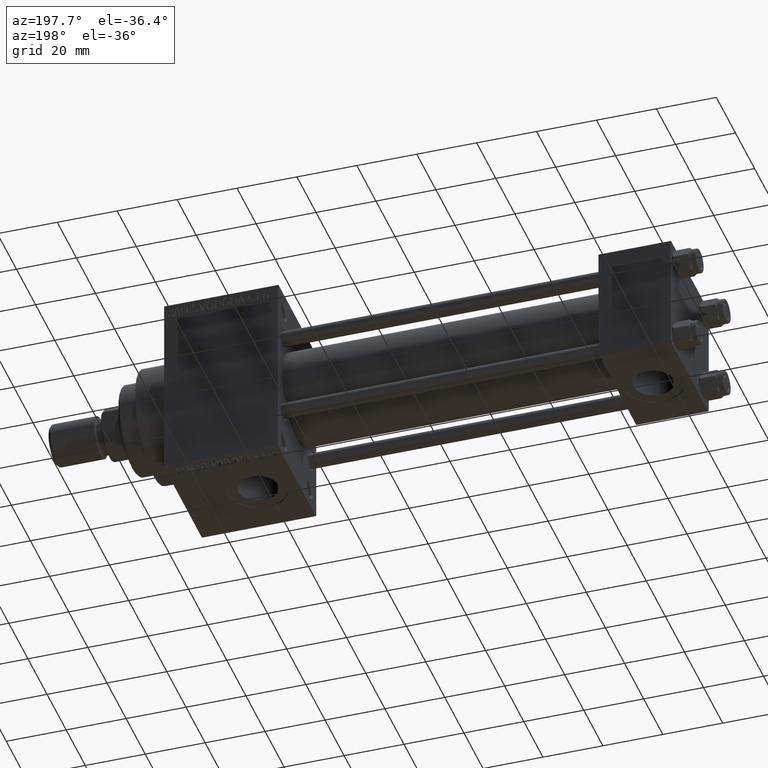
[diagram: clean part render]
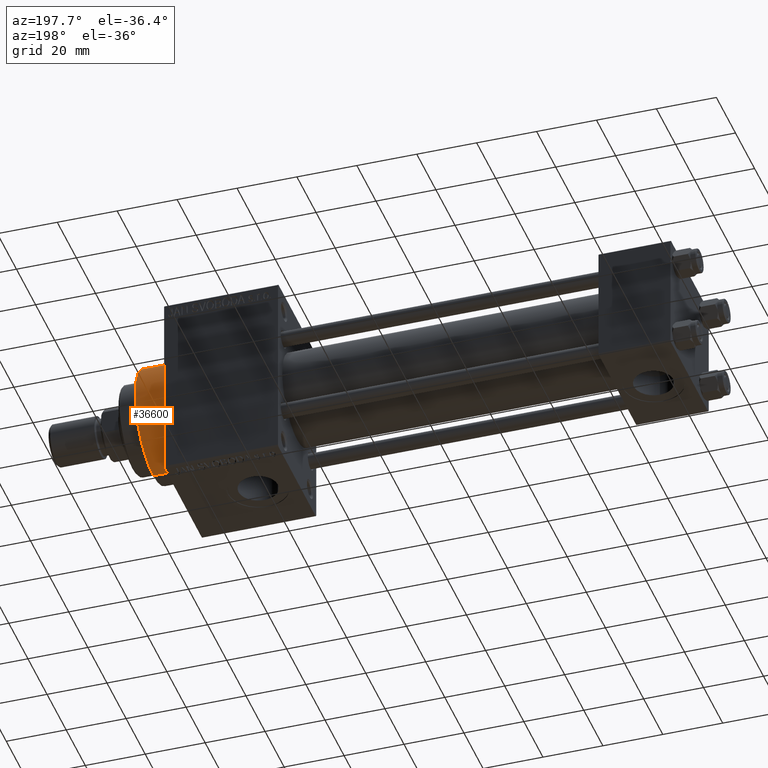
[diagram: same view with one face highlighted and labeled with its STEP entity id]
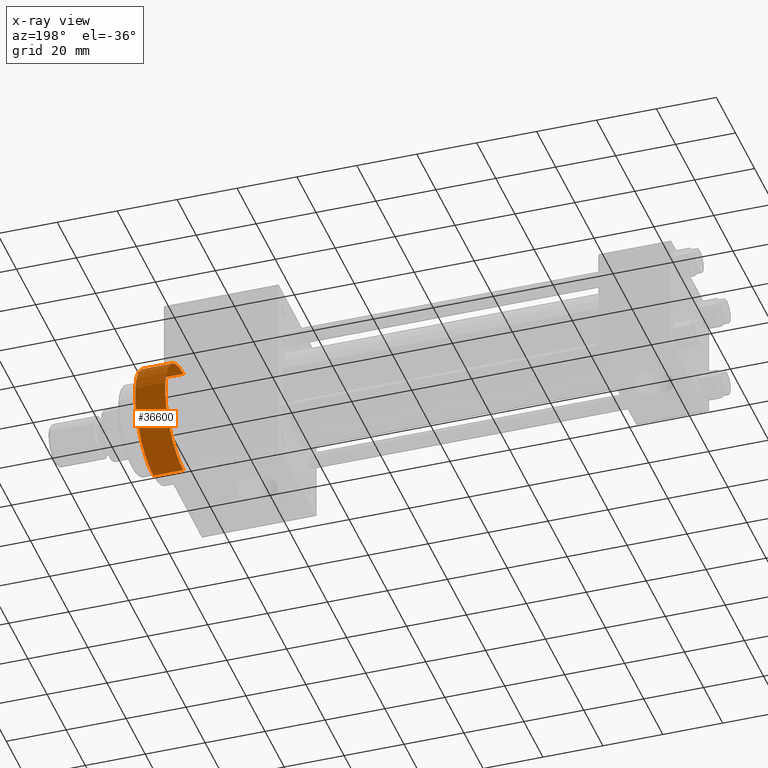
[diagram: x-ray of the same camera — body ghosted, the highlighted face saturated]
A machine part, auxiliary view. The second image highlights one B-rep face of the part: STEP entity #36600.
The next image is the same camera in x-ray: the body ghosted, the highlighted face saturated — about 1% of this face is hidden behind the body in this view.
In plain terms, the highlighted cylindrical surface (partial cylindrical patch) has radius 19 mm, axis along (-1, -0, -0).
Its self-contained STEP definition (entity closure, byte-faithful):
#1198 = EDGE_CURVE ( 'NONE', #14512, #39674, #3209, .T. ) ;
#1768 = DIRECTION ( 'NONE',  ( -1.000000000000000000, -0.000000000000000000, -0.000000000000000000 ) ) ;
#1817 = ORIENTED_EDGE ( 'NONE', *, *, #38775, .T. ) ;
#2920 = EDGE_LOOP ( 'NONE', ( #8797, #1817, #2965, #33350 ) ) ;
#2965 = ORIENTED_EDGE ( 'NONE', *, *, #24795, .T. ) ;
#3143 = CIRCLE ( 'NONE', #19278, 19.00000000000000000 ) ;
#3209 = CIRCLE ( 'NONE', #33952, 19.00000000000000000 ) ;
#3485 = VECTOR ( 'NONE', #21138, 1000.000000000000000 ) ;
#4128 = CARTESIAN_POINT ( 'NONE',  ( 169.0000000000000000, 0.000000000000000000, 19.00000000000000000 ) ) ;
#6031 = DIRECTION ( 'NONE',  ( 1.000000000000000000, 0.000000000000000000, 0.000000000000000000 ) ) ;
#7297 = CARTESIAN_POINT ( 'NONE',  ( 179.0000000000000284, 0.000000000000000000, 19.00000000000000000 ) ) ;
#8118 = CARTESIAN_POINT ( 'NONE',  ( 169.0000000000000000, 2.326828918379970970E-15, -19.00000000000000000 ) ) ;
#8797 = ORIENTED_EDGE ( 'NONE', *, *, #1198, .F. ) ;
#8846 = VERTEX_POINT ( 'NONE', #4128 ) ;
#9222 = CARTESIAN_POINT ( 'NONE',  ( 179.0000000000000284, 0.000000000000000000, 0.000000000000000000 ) ) ;
#13783 = DIRECTION ( 'NONE',  ( 0.000000000000000000, 0.000000000000000000, -1.000000000000000000 ) ) ;
#14512 = VERTEX_POINT ( 'NONE', #34202 ) ;
#19278 = AXIS2_PLACEMENT_3D ( 'NONE', #24088, #6031, #31770 ) ;
#20039 = CARTESIAN_POINT ( 'NONE',  ( 179.0000000000000284, 0.000000000000000000, 0.000000000000000000 ) ) ;
#20831 = VERTEX_POINT ( 'NONE', #8118 ) ;
#21138 = DIRECTION ( 'NONE',  ( -1.000000000000000000, -0.000000000000000000, -0.000000000000000000 ) ) ;
#21962 = DIRECTION ( 'NONE',  ( -1.000000000000000000, -0.000000000000000000, -0.000000000000000000 ) ) ;
#24088 = CARTESIAN_POINT ( 'NONE',  ( 169.0000000000000000, 0.000000000000000000, 0.000000000000000000 ) ) ;
#24795 = EDGE_CURVE ( 'NONE', #20831, #8846, #3143, .T. ) ;
#27263 = FACE_OUTER_BOUND ( 'NONE', #2920, .T. ) ;
#27498 = DIRECTION ( 'NONE',  ( 0.000000000000000000, 0.000000000000000000, 1.000000000000000000 ) ) ;
#30351 = EDGE_CURVE ( 'NONE', #39674, #8846, #40495, .T. ) ;
#31770 = DIRECTION ( 'NONE',  ( 0.000000000000000000, 0.000000000000000000, -1.000000000000000000 ) ) ;
#33350 = ORIENTED_EDGE ( 'NONE', *, *, #30351, .F. ) ;
#33952 = AXIS2_PLACEMENT_3D ( 'NONE', #20039, #41947, #13783 ) ;
#34202 = CARTESIAN_POINT ( 'NONE',  ( 179.0000000000000284, 2.326828918379970970E-15, -19.00000000000000000 ) ) ;
#34649 = CARTESIAN_POINT ( 'NONE',  ( 179.0000000000000284, 0.000000000000000000, 19.00000000000000000 ) ) ;
#36600 = ADVANCED_FACE ( 'NONE', ( #27263 ), #41462, .T. ) ;
#37990 = AXIS2_PLACEMENT_3D ( 'NONE', #9222, #1768, #27498 ) ;
#38775 = EDGE_CURVE ( 'NONE', #14512, #20831, #40149, .T. ) ;
#39441 = CARTESIAN_POINT ( 'NONE',  ( 179.0000000000000284, 2.326828918379970970E-15, -19.00000000000000000 ) ) ;
#39674 = VERTEX_POINT ( 'NONE', #34649 ) ;
#40149 = LINE ( 'NONE', #39441, #3485 ) ;
#40495 = LINE ( 'NONE', #7297, #45436 ) ;
#41462 = CYLINDRICAL_SURFACE ( 'NONE', #37990, 19.00000000000000000 ) ;
#41947 = DIRECTION ( 'NONE',  ( 1.000000000000000000, 0.000000000000000000, 0.000000000000000000 ) ) ;
#45436 = VECTOR ( 'NONE', #21962, 1000.000000000000000 ) ;